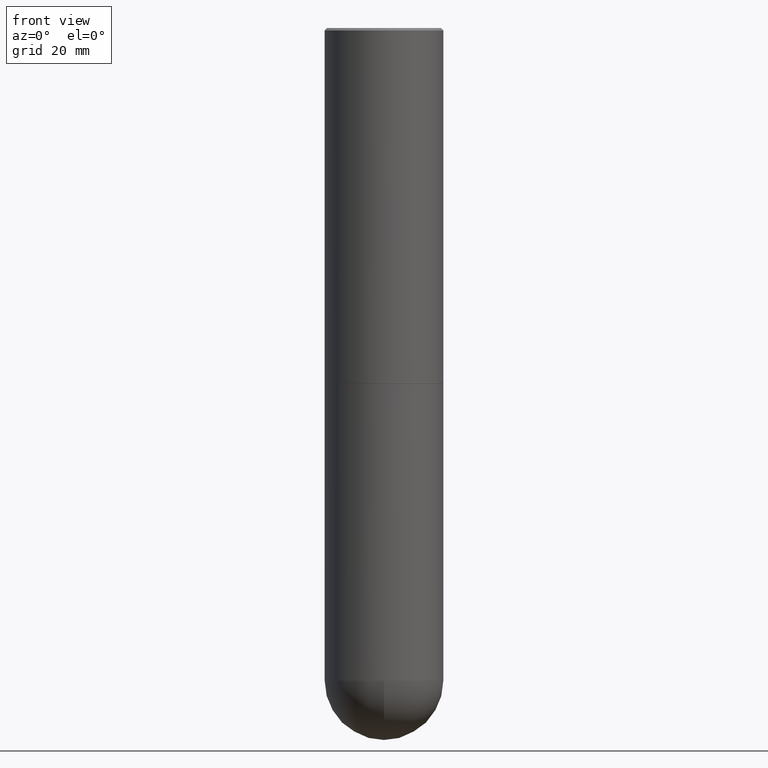
[diagram: clean part render]
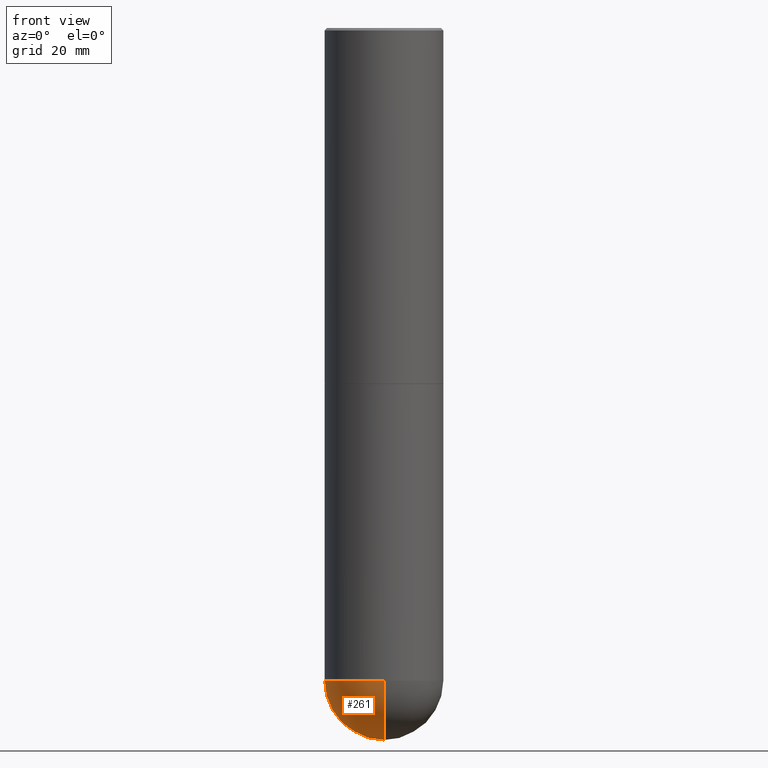
[diagram: same view with one face highlighted and labeled with its STEP entity id]
A machine part, front view. The second image highlights one B-rep face of the part: STEP entity #261.
In plain terms, the highlighted spherical surface has radius 12.5006 mm.
Its self-contained STEP definition (entity closure, byte-faithful):
#11 = CARTESIAN_POINT ( 'NONE',  ( -3.496936074043201946E-15, -0.4921500000000192387, -5.413349999999997664 ) ) ;
#15 = DIRECTION ( 'NONE',  ( 6.982962677686266711E-15, 1.000000000000000000, -4.440675393541420887E-15 ) ) ;
#16 = EDGE_CURVE ( 'NONE', #173, #208, #382, .T. ) ;
#24 = CARTESIAN_POINT ( 'NONE',  ( -0.4921499999999999764, -1.110801765337101862E-14, -5.413349999999999440 ) ) ;
#27 = AXIS2_PLACEMENT_3D ( 'NONE', #32, #286, #232 ) ;
#31 = EDGE_CURVE ( 'NONE', #208, #78, #187, .T. ) ;
#32 = CARTESIAN_POINT ( 'NONE',  ( 1.290705878404842200E-28, -1.937479287376659043E-14, -5.413349999999999440 ) ) ;
#45 = AXIS2_PLACEMENT_3D ( 'NONE', #370, #82, #190 ) ;
#53 = CARTESIAN_POINT ( 'NONE',  ( 1.290705878404842200E-28, -1.937479287376659043E-14, -5.413349999999999440 ) ) ;
#78 = VERTEX_POINT ( 'NONE', #24 ) ;
#82 = DIRECTION ( 'NONE',  ( -1.000000000000000000, 7.105427357601001070E-15, -4.926315508542082329E-29 ) ) ;
#83 = SPHERICAL_SURFACE ( 'NONE', #106, 0.4921500000000000874 ) ;
#94 = EDGE_CURVE ( 'NONE', #78, #378, #303, .T. ) ;
#101 = DIRECTION ( 'NONE',  ( -2.445468806185136597E-29, 3.491481338843145583E-15, 1.000000000000000000 ) ) ;
#106 = AXIS2_PLACEMENT_3D ( 'NONE', #53, #129, #15 ) ;
#113 = ORIENTED_EDGE ( 'NONE', *, *, #412, .T. ) ;
#129 = DIRECTION ( 'NONE',  ( -1.000000000000000000, 6.982962677686266711E-15, -4.883557194083112901E-29 ) ) ;
#130 = CARTESIAN_POINT ( 'NONE',  ( 3.436665081823426728E-15, 0.4921499999999808250, -5.413350000000002105 ) ) ;
#139 = ORIENTED_EDGE ( 'NONE', *, *, #94, .F. ) ;
#156 = DIRECTION ( 'NONE',  ( -2.445468806185136597E-29, 3.491481338843145583E-15, 1.000000000000000000 ) ) ;
#173 = VERTEX_POINT ( 'NONE', #397 ) ;
#187 = CIRCLE ( 'NONE', #292, 0.4921499999999999764 ) ;
#188 = CARTESIAN_POINT ( 'NONE',  ( 1.323817856196230713E-28, -1.890061050562653856E-14, -5.413349999999999440 ) ) ;
#190 = DIRECTION ( 'NONE',  ( -7.105427357601001070E-15, -1.000000000000000000, 0.000000000000000000 ) ) ;
#208 = VERTEX_POINT ( 'NONE', #130 ) ;
#227 = CARTESIAN_POINT ( 'NONE',  ( 1.323817856196230713E-28, -1.890061050562653856E-14, -5.413349999999999440 ) ) ;
#232 = DIRECTION ( 'NONE',  ( 6.982962677686265922E-15, 1.000000000000000000, 0.000000000000000000 ) ) ;
#261 = ADVANCED_FACE ( 'NONE', ( #330 ), #83, .T. ) ;
#273 = DIRECTION ( 'NONE',  ( 1.000000000000000000, -6.982962677686265922E-15, 0.000000000000000000 ) ) ;
#278 = AXIS2_PLACEMENT_3D ( 'NONE', #227, #101, #347 ) ;
#286 = DIRECTION ( 'NONE',  ( 1.000000000000000000, -6.982962677686265922E-15, 4.883557194083112340E-29 ) ) ;
#292 = AXIS2_PLACEMENT_3D ( 'NONE', #188, #156, #273 ) ;
#296 = EDGE_LOOP ( 'NONE', ( #320, #113, #139, #396 ) ) ;
#303 = CIRCLE ( 'NONE', #278, 0.4921499999999999764 ) ;
#320 = ORIENTED_EDGE ( 'NONE', *, *, #16, .F. ) ;
#330 = FACE_OUTER_BOUND ( 'NONE', #296, .T. ) ;
#340 = CIRCLE ( 'NONE', #45, 0.4921500000000000874 ) ;
#347 = DIRECTION ( 'NONE',  ( 1.000000000000000000, -6.982962677686265922E-15, 0.000000000000000000 ) ) ;
#370 = CARTESIAN_POINT ( 'NONE',  ( 1.290705878404842200E-28, -1.937479287376659043E-14, -5.413349999999999440 ) ) ;
#378 = VERTEX_POINT ( 'NONE', #11 ) ;
#382 = CIRCLE ( 'NONE', #27, 0.4921500000000000874 ) ;
#396 = ORIENTED_EDGE ( 'NONE', *, *, #31, .F. ) ;
#397 = CARTESIAN_POINT ( 'NONE',  ( 1.413163976147341948E-28, -2.106298991856822883E-14, -5.905499999999999972 ) ) ;
#412 = EDGE_CURVE ( 'NONE', #173, #378, #340, .T. ) ;